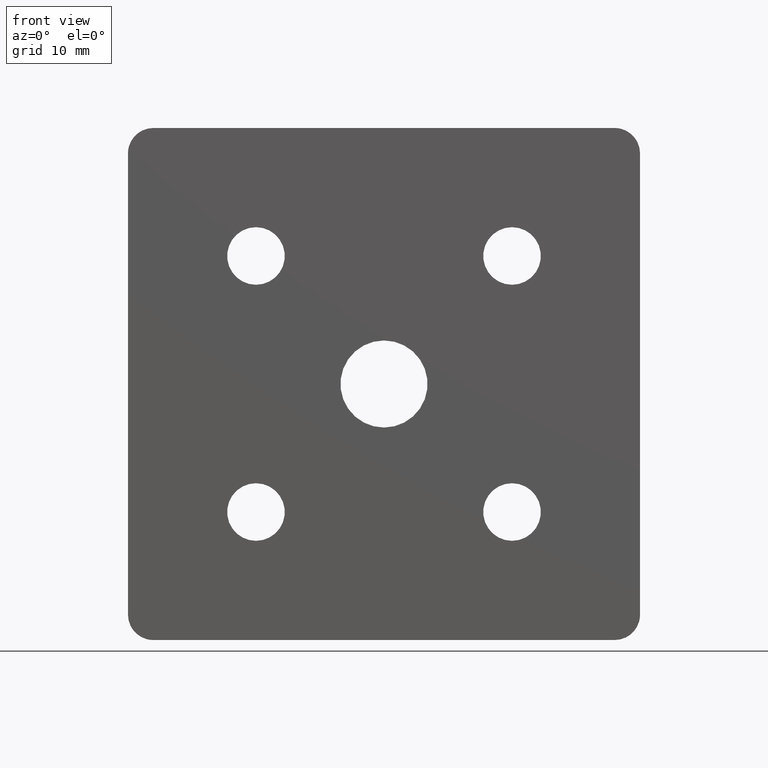
[diagram: clean part render]
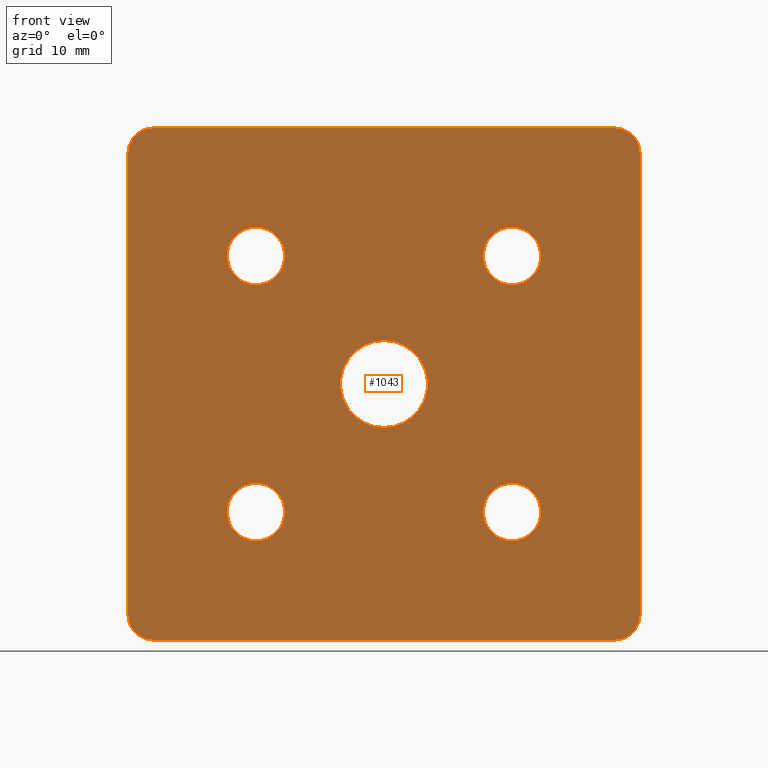
[diagram: same view with one face highlighted and labeled with its STEP entity id]
A machine part, front view. The second image highlights one B-rep face of the part: STEP entity #1043.
In plain terms, the highlighted planar face has unit normal (0, 1, 0).
Its self-contained STEP definition (entity closure, byte-faithful):
#1 = VERTEX_POINT ( 'NONE', #351 ) ;
#13 = EDGE_CURVE ( 'NONE', #1045, #95, #287, .T. ) ;
#28 = EDGE_LOOP ( 'NONE', ( #851, #924 ) ) ;
#31 = CARTESIAN_POINT ( 'NONE',  ( 36.00000000000000700, 0.0000000000000000000, -36.00000000000000700 ) ) ;
#38 = DIRECTION ( 'NONE',  ( 0.0000000000000000000, 0.0000000000000000000, -1.000000000000000000 ) ) ;
#42 = CARTESIAN_POINT ( 'NONE',  ( 20.00000000000000000, 0.0000000000000000000, 15.50000000000000000 ) ) ;
#45 = VERTEX_POINT ( 'NONE', #85 ) ;
#46 = DIRECTION ( 'NONE',  ( -1.000000000000000000, -0.0000000000000000000, 0.0000000000000000000 ) ) ;
#59 = EDGE_LOOP ( 'NONE', ( #78, #1208 ) ) ;
#61 = CARTESIAN_POINT ( 'NONE',  ( 20.00000000000000000, 0.0000000000000000000, -24.50000000000000000 ) ) ;
#63 = LINE ( 'NONE', #893, #742 ) ;
#78 = ORIENTED_EDGE ( 'NONE', *, *, #892, .F. ) ;
#80 = FACE_BOUND ( 'NONE', #713, .T. ) ;
#82 = ORIENTED_EDGE ( 'NONE', *, *, #1099, .F. ) ;
#85 = CARTESIAN_POINT ( 'NONE',  ( -40.00000000000000000, 0.0000000000000000000, -36.00000000000000700 ) ) ;
#91 = ORIENTED_EDGE ( 'NONE', *, *, #807, .F. ) ;
#93 = DIRECTION ( 'NONE',  ( 0.0000000000000000000, 0.0000000000000000000, 1.000000000000000000 ) ) ;
#95 = VERTEX_POINT ( 'NONE', #1059 ) ;
#105 = CARTESIAN_POINT ( 'NONE',  ( -20.00000000000000000, 0.0000000000000000000, 20.00000000000000000 ) ) ;
#116 = CARTESIAN_POINT ( 'NONE',  ( -36.00000000000000700, 0.0000000000000000000, -36.00000000000000700 ) ) ;
#119 = CARTESIAN_POINT ( 'NONE',  ( -40.00000000000000000, 0.0000000000000000000, 0.0000000000000000000 ) ) ;
#130 = DIRECTION ( 'NONE',  ( -0.0000000000000000000, 1.000000000000000000, -0.0000000000000000000 ) ) ;
#141 = VECTOR ( 'NONE', #292, 1000.000000000000000 ) ;
#148 = DIRECTION ( 'NONE',  ( -0.0000000000000000000, -1.000000000000000000, -0.0000000000000000000 ) ) ;
#150 = VERTEX_POINT ( 'NONE', #1166 ) ;
#151 = CIRCLE ( 'NONE', #510, 3.999999999999989800 ) ;
#157 = EDGE_LOOP ( 'NONE', ( #1107, #388, #817, #301, #1150, #981, #91, #466 ) ) ;
#169 = CARTESIAN_POINT ( 'NONE',  ( 0.0000000000000000000, 0.0000000000000000000, 0.0000000000000000000 ) ) ;
#171 = CIRCLE ( 'NONE', #804, 4.500000000000000900 ) ;
#183 = DIRECTION ( 'NONE',  ( -0.0000000000000000000, -1.000000000000000000, -0.0000000000000000000 ) ) ;
#190 = AXIS2_PLACEMENT_3D ( 'NONE', #917, #343, #1207 ) ;
#192 = LINE ( 'NONE', #826, #1228 ) ;
#197 = CARTESIAN_POINT ( 'NONE',  ( 20.00000000000000000, 0.0000000000000000000, -20.00000000000000000 ) ) ;
#203 = AXIS2_PLACEMENT_3D ( 'NONE', #511, #694, #237 ) ;
#206 = EDGE_CURVE ( 'NONE', #45, #1, #329, .T. ) ;
#226 = FACE_BOUND ( 'NONE', #28, .T. ) ;
#227 = DIRECTION ( 'NONE',  ( 0.0000000000000000000, 0.0000000000000000000, 1.000000000000000000 ) ) ;
#228 = CIRCLE ( 'NONE', #1017, 4.500000000000000900 ) ;
#234 = VERTEX_POINT ( 'NONE', #426 ) ;
#237 = DIRECTION ( 'NONE',  ( 0.0000000000000000000, 0.0000000000000000000, -1.000000000000000000 ) ) ;
#247 = CARTESIAN_POINT ( 'NONE',  ( -20.00000000000000000, 0.0000000000000000000, 20.00000000000000000 ) ) ;
#248 = EDGE_CURVE ( 'NONE', #583, #150, #228, .T. ) ;
#250 = CARTESIAN_POINT ( 'NONE',  ( -20.00000000000000000, 0.0000000000000000000, -20.00000000000000000 ) ) ;
#286 = DIRECTION ( 'NONE',  ( -0.0000000000000000000, -1.000000000000000000, -0.0000000000000000000 ) ) ;
#287 = LINE ( 'NONE', #923, #727 ) ;
#292 = DIRECTION ( 'NONE',  ( 0.0000000000000000000, -0.0000000000000000000, 1.000000000000000000 ) ) ;
#301 = ORIENTED_EDGE ( 'NONE', *, *, #776, .F. ) ;
#328 = CARTESIAN_POINT ( 'NONE',  ( -20.00000000000000000, 0.0000000000000000000, -15.50000000000000000 ) ) ;
#329 = LINE ( 'NONE', #119, #141 ) ;
#335 = EDGE_CURVE ( 'NONE', #527, #341, #1227, .T. ) ;
#336 = DIRECTION ( 'NONE',  ( -0.0000000000000000000, 1.000000000000000000, -0.0000000000000000000 ) ) ;
#341 = VERTEX_POINT ( 'NONE', #42 ) ;
#343 = DIRECTION ( 'NONE',  ( -0.0000000000000000000, -1.000000000000000000, -0.0000000000000000000 ) ) ;
#347 = CIRCLE ( 'NONE', #780, 3.999999999999989800 ) ;
#351 = CARTESIAN_POINT ( 'NONE',  ( -40.00000000000000000, 0.0000000000000000000, 36.00000000000000700 ) ) ;
#358 = CARTESIAN_POINT ( 'NONE',  ( 39.99999999999999300, 0.0000000000000000000, -36.00000000000000700 ) ) ;
#382 = CARTESIAN_POINT ( 'NONE',  ( 36.00000000000000700, 0.0000000000000000000, 39.99999999999999300 ) ) ;
#388 = ORIENTED_EDGE ( 'NONE', *, *, #13, .F. ) ;
#391 = VERTEX_POINT ( 'NONE', #328 ) ;
#397 = EDGE_CURVE ( 'NONE', #1019, #1045, #347, .T. ) ;
#401 = EDGE_CURVE ( 'NONE', #613, #391, #1113, .T. ) ;
#407 = DIRECTION ( 'NONE',  ( 0.0000000000000000000, 0.0000000000000000000, 1.000000000000000000 ) ) ;
#418 = CIRCLE ( 'NONE', #1141, 4.500000000000000900 ) ;
#423 = AXIS2_PLACEMENT_3D ( 'NONE', #250, #445, #430 ) ;
#426 = CARTESIAN_POINT ( 'NONE',  ( 8.327598234202001100E-016, 0.0000000000000000000, -6.799999999999999800 ) ) ;
#430 = DIRECTION ( 'NONE',  ( 0.0000000000000000000, 0.0000000000000000000, 1.000000000000000000 ) ) ;
#431 = ORIENTED_EDGE ( 'NONE', *, *, #566, .F. ) ;
#435 = VERTEX_POINT ( 'NONE', #1218 ) ;
#438 = EDGE_LOOP ( 'NONE', ( #431, #1136 ) ) ;
#445 = DIRECTION ( 'NONE',  ( -0.0000000000000000000, -1.000000000000000000, -0.0000000000000000000 ) ) ;
#446 = DIRECTION ( 'NONE',  ( -0.0000000000000000000, -1.000000000000000000, -0.0000000000000000000 ) ) ;
#456 = CARTESIAN_POINT ( 'NONE',  ( 20.00000000000000000, 0.0000000000000000000, 24.50000000000000000 ) ) ;
#466 = ORIENTED_EDGE ( 'NONE', *, *, #206, .F. ) ;
#498 = EDGE_CURVE ( 'NONE', #1127, #637, #192, .T. ) ;
#501 = CARTESIAN_POINT ( 'NONE',  ( 0.0000000000000000000, 0.0000000000000000000, 0.0000000000000000000 ) ) ;
#510 = AXIS2_PLACEMENT_3D ( 'NONE', #1056, #1142, #548 ) ;
#511 = CARTESIAN_POINT ( 'NONE',  ( -36.00000000000000700, 0.0000000000000000000, 36.00000000000000700 ) ) ;
#517 = CARTESIAN_POINT ( 'NONE',  ( 0.0000000000000000000, 0.0000000000000000000, 6.799999999999999800 ) ) ;
#520 = VERTEX_POINT ( 'NONE', #1037 ) ;
#524 = AXIS2_PLACEMENT_3D ( 'NONE', #197, #1158, #584 ) ;
#527 = VERTEX_POINT ( 'NONE', #456 ) ;
#540 = DIRECTION ( 'NONE',  ( 0.0000000000000000000, 0.0000000000000000000, 1.000000000000000000 ) ) ;
#545 = CARTESIAN_POINT ( 'NONE',  ( 36.00000000000000700, 0.0000000000000000000, -40.00000000000000000 ) ) ;
#548 = DIRECTION ( 'NONE',  ( 0.0000000000000000000, 0.0000000000000000000, -1.000000000000000000 ) ) ;
#565 = DIRECTION ( 'NONE',  ( 0.0000000000000000000, 0.0000000000000000000, 1.000000000000000000 ) ) ;
#566 = EDGE_CURVE ( 'NONE', #803, #234, #1138, .T. ) ;
#575 = CARTESIAN_POINT ( 'NONE',  ( -36.00000000000000700, 0.0000000000000000000, 40.00000000000000000 ) ) ;
#583 = VERTEX_POINT ( 'NONE', #61 ) ;
#584 = DIRECTION ( 'NONE',  ( 0.0000000000000000000, 0.0000000000000000000, 1.000000000000000000 ) ) ;
#590 = CIRCLE ( 'NONE', #423, 4.500000000000000900 ) ;
#613 = VERTEX_POINT ( 'NONE', #651 ) ;
#616 = CARTESIAN_POINT ( 'NONE',  ( 20.00000000000000000, 0.0000000000000000000, 20.00000000000000000 ) ) ;
#627 = CIRCLE ( 'NONE', #203, 3.999999999999989800 ) ;
#637 = VERTEX_POINT ( 'NONE', #382 ) ;
#651 = CARTESIAN_POINT ( 'NONE',  ( -20.00000000000000000, 0.0000000000000000000, -24.50000000000000000 ) ) ;
#654 = CARTESIAN_POINT ( 'NONE',  ( 0.0000000000000000000, 0.0000000000000000000, 0.0000000000000000000 ) ) ;
#655 = AXIS2_PLACEMENT_3D ( 'NONE', #616, #446, #805 ) ;
#664 = EDGE_CURVE ( 'NONE', #435, #795, #171, .T. ) ;
#666 = DIRECTION ( 'NONE',  ( -0.0000000000000000000, -1.000000000000000000, -0.0000000000000000000 ) ) ;
#693 = ORIENTED_EDGE ( 'NONE', *, *, #335, .F. ) ;
#694 = DIRECTION ( 'NONE',  ( -0.0000000000000000000, 1.000000000000000000, -0.0000000000000000000 ) ) ;
#695 = FACE_BOUND ( 'NONE', #59, .T. ) ;
#707 = ORIENTED_EDGE ( 'NONE', *, *, #1184, .F. ) ;
#713 = EDGE_LOOP ( 'NONE', ( #82, #886 ) ) ;
#727 = VECTOR ( 'NONE', #46, 1000.000000000000000 ) ;
#731 = CIRCLE ( 'NONE', #1126, 4.500000000000000900 ) ;
#742 = VECTOR ( 'NONE', #1007, 1000.000000000000000 ) ;
#757 = CIRCLE ( 'NONE', #524, 4.500000000000000900 ) ;
#774 = AXIS2_PLACEMENT_3D ( 'NONE', #169, #943, #828 ) ;
#776 = EDGE_CURVE ( 'NONE', #520, #1019, #63, .T. ) ;
#780 = AXIS2_PLACEMENT_3D ( 'NONE', #31, #336, #38 ) ;
#783 = CIRCLE ( 'NONE', #1116, 6.799999999999999800 ) ;
#792 = EDGE_CURVE ( 'NONE', #95, #45, #1082, .T. ) ;
#795 = VERTEX_POINT ( 'NONE', #1003 ) ;
#803 = VERTEX_POINT ( 'NONE', #517 ) ;
#804 = AXIS2_PLACEMENT_3D ( 'NONE', #105, #985, #407 ) ;
#805 = DIRECTION ( 'NONE',  ( 0.0000000000000000000, 0.0000000000000000000, 1.000000000000000000 ) ) ;
#807 = EDGE_CURVE ( 'NONE', #1, #1127, #627, .T. ) ;
#817 = ORIENTED_EDGE ( 'NONE', *, *, #397, .F. ) ;
#826 = CARTESIAN_POINT ( 'NONE',  ( 0.0000000000000000000, 0.0000000000000000000, 40.00000000000000000 ) ) ;
#828 = DIRECTION ( 'NONE',  ( 0.0000000000000000000, -0.0000000000000000000, 1.000000000000000000 ) ) ;
#849 = AXIS2_PLACEMENT_3D ( 'NONE', #654, #286, #1058 ) ;
#851 = ORIENTED_EDGE ( 'NONE', *, *, #664, .F. ) ;
#859 = AXIS2_PLACEMENT_3D ( 'NONE', #116, #130, #1106 ) ;
#873 = EDGE_CURVE ( 'NONE', #795, #435, #731, .T. ) ;
#886 = ORIENTED_EDGE ( 'NONE', *, *, #248, .F. ) ;
#892 = EDGE_CURVE ( 'NONE', #391, #613, #590, .T. ) ;
#893 = CARTESIAN_POINT ( 'NONE',  ( 40.00000000000000000, 0.0000000000000000000, 0.0000000000000000000 ) ) ;
#917 = CARTESIAN_POINT ( 'NONE',  ( -20.00000000000000000, 0.0000000000000000000, -20.00000000000000000 ) ) ;
#923 = CARTESIAN_POINT ( 'NONE',  ( 0.0000000000000000000, 0.0000000000000000000, -40.00000000000000000 ) ) ;
#924 = ORIENTED_EDGE ( 'NONE', *, *, #873, .F. ) ;
#930 = PLANE ( 'NONE',  #774 ) ;
#943 = DIRECTION ( 'NONE',  ( 0.0000000000000000000, 1.000000000000000000, 0.0000000000000000000 ) ) ;
#959 = FACE_BOUND ( 'NONE', #1075, .T. ) ;
#981 = ORIENTED_EDGE ( 'NONE', *, *, #498, .F. ) ;
#985 = DIRECTION ( 'NONE',  ( -0.0000000000000000000, -1.000000000000000000, -0.0000000000000000000 ) ) ;
#1003 = CARTESIAN_POINT ( 'NONE',  ( -20.00000000000000000, 0.0000000000000000000, 15.50000000000000000 ) ) ;
#1007 = DIRECTION ( 'NONE',  ( -0.0000000000000000000, 0.0000000000000000000, -1.000000000000000000 ) ) ;
#1017 = AXIS2_PLACEMENT_3D ( 'NONE', #1104, #666, #93 ) ;
#1019 = VERTEX_POINT ( 'NONE', #358 ) ;
#1028 = FACE_BOUND ( 'NONE', #438, .T. ) ;
#1037 = CARTESIAN_POINT ( 'NONE',  ( 40.00000000000000000, 0.0000000000000000000, 36.00000000000000700 ) ) ;
#1043 = ADVANCED_FACE ( 'NONE', ( #1224, #959, #80, #226, #695, #1028 ), #930, .F. ) ;
#1045 = VERTEX_POINT ( 'NONE', #545 ) ;
#1056 = CARTESIAN_POINT ( 'NONE',  ( 36.00000000000000700, 0.0000000000000000000, 36.00000000000000700 ) ) ;
#1057 = EDGE_CURVE ( 'NONE', #637, #520, #151, .T. ) ;
#1058 = DIRECTION ( 'NONE',  ( 0.0000000000000000000, 0.0000000000000000000, 1.000000000000000000 ) ) ;
#1059 = CARTESIAN_POINT ( 'NONE',  ( -36.00000000000000700, 0.0000000000000000000, -39.99999999999999300 ) ) ;
#1075 = EDGE_LOOP ( 'NONE', ( #693, #707 ) ) ;
#1082 = CIRCLE ( 'NONE', #859, 3.999999999999989800 ) ;
#1099 = EDGE_CURVE ( 'NONE', #150, #583, #757, .T. ) ;
#1104 = CARTESIAN_POINT ( 'NONE',  ( 20.00000000000000000, 0.0000000000000000000, -20.00000000000000000 ) ) ;
#1106 = DIRECTION ( 'NONE',  ( 0.0000000000000000000, 0.0000000000000000000, -1.000000000000000000 ) ) ;
#1107 = ORIENTED_EDGE ( 'NONE', *, *, #792, .F. ) ;
#1113 = CIRCLE ( 'NONE', #190, 4.500000000000000900 ) ;
#1116 = AXIS2_PLACEMENT_3D ( 'NONE', #501, #1181, #227 ) ;
#1126 = AXIS2_PLACEMENT_3D ( 'NONE', #247, #148, #540 ) ;
#1127 = VERTEX_POINT ( 'NONE', #575 ) ;
#1136 = ORIENTED_EDGE ( 'NONE', *, *, #1220, .F. ) ;
#1138 = CIRCLE ( 'NONE', #849, 6.799999999999999800 ) ;
#1141 = AXIS2_PLACEMENT_3D ( 'NONE', #1155, #183, #565 ) ;
#1142 = DIRECTION ( 'NONE',  ( -0.0000000000000000000, 1.000000000000000000, -0.0000000000000000000 ) ) ;
#1150 = ORIENTED_EDGE ( 'NONE', *, *, #1057, .F. ) ;
#1155 = CARTESIAN_POINT ( 'NONE',  ( 20.00000000000000000, 0.0000000000000000000, 20.00000000000000000 ) ) ;
#1158 = DIRECTION ( 'NONE',  ( -0.0000000000000000000, -1.000000000000000000, -0.0000000000000000000 ) ) ;
#1166 = CARTESIAN_POINT ( 'NONE',  ( 20.00000000000000000, 0.0000000000000000000, -15.50000000000000000 ) ) ;
#1181 = DIRECTION ( 'NONE',  ( -0.0000000000000000000, -1.000000000000000000, -0.0000000000000000000 ) ) ;
#1184 = EDGE_CURVE ( 'NONE', #341, #527, #418, .T. ) ;
#1207 = DIRECTION ( 'NONE',  ( 0.0000000000000000000, 0.0000000000000000000, 1.000000000000000000 ) ) ;
#1208 = ORIENTED_EDGE ( 'NONE', *, *, #401, .F. ) ;
#1218 = CARTESIAN_POINT ( 'NONE',  ( -20.00000000000000000, 0.0000000000000000000, 24.50000000000000000 ) ) ;
#1220 = EDGE_CURVE ( 'NONE', #234, #803, #783, .T. ) ;
#1224 = FACE_OUTER_BOUND ( 'NONE', #157, .T. ) ;
#1226 = DIRECTION ( 'NONE',  ( 1.000000000000000000, 0.0000000000000000000, -0.0000000000000000000 ) ) ;
#1227 = CIRCLE ( 'NONE', #655, 4.500000000000000900 ) ;
#1228 = VECTOR ( 'NONE', #1226, 1000.000000000000000 ) ;